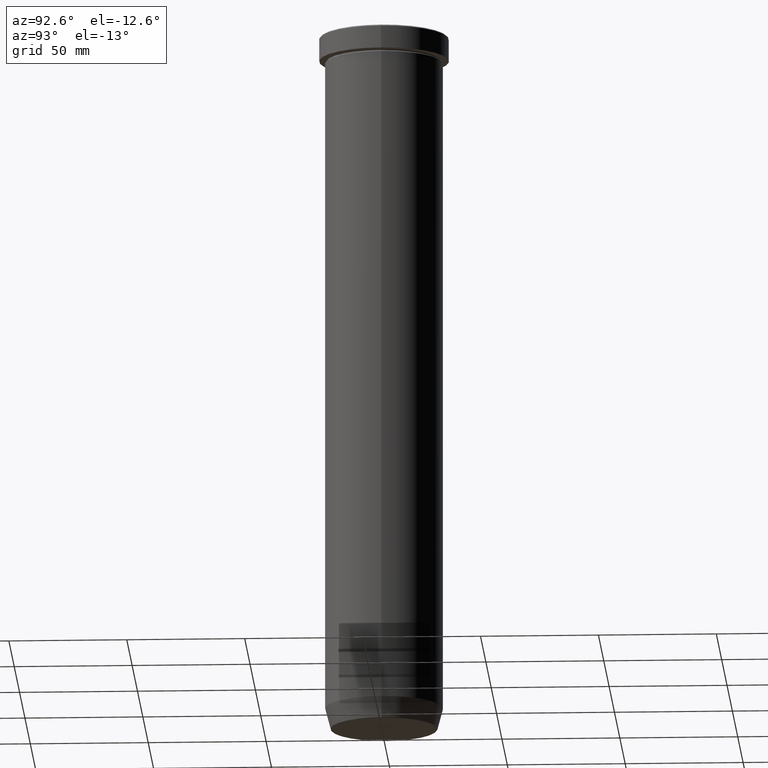
[diagram: clean part render]
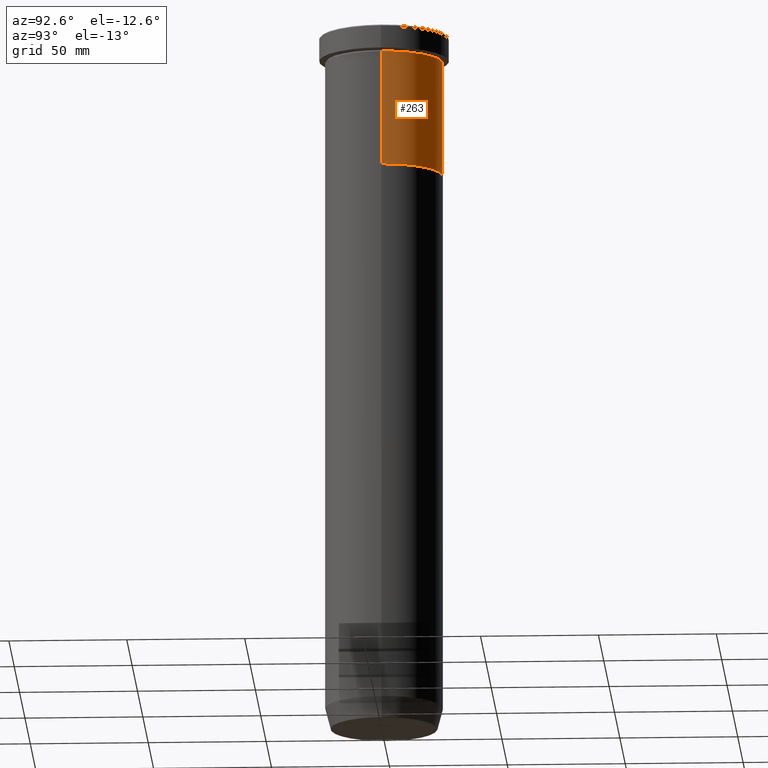
[diagram: same view with one face highlighted and labeled with its STEP entity id]
A machine part, auxiliary view. The second image highlights one B-rep face of the part: STEP entity #263.
In plain terms, the highlighted cylindrical surface (partial cylindrical patch) has radius 25 mm, axis along (-0, -0, 1).
Its self-contained STEP definition (entity closure, byte-faithful):
#35 = LINE ( 'NONE', #227, #477 ) ;
#43 = CARTESIAN_POINT ( 'NONE',  ( 25.00000000000000000, 0.000000000000000000, 0.000000000000000000 ) ) ;
#50 = EDGE_CURVE ( 'NONE', #171, #387, #73, .T. ) ;
#71 = CARTESIAN_POINT ( 'NONE',  ( 0.000000000000000000, 0.000000000000000000, -60.00000000000000000 ) ) ;
#73 = CIRCLE ( 'NONE', #449, 25.00000000000000000 ) ;
#74 = DIRECTION ( 'NONE',  ( -0.000000000000000000, -0.000000000000000000, 1.000000000000000000 ) ) ;
#81 = EDGE_CURVE ( 'NONE', #573, #403, #588, .T. ) ;
#117 = CARTESIAN_POINT ( 'NONE',  ( 0.000000000000000000, 0.000000000000000000, -11.00000000000000000 ) ) ;
#123 = EDGE_CURVE ( 'NONE', #573, #171, #189, .T. ) ;
#171 = VERTEX_POINT ( 'NONE', #469 ) ;
#175 = AXIS2_PLACEMENT_3D ( 'NONE', #262, #196, #370 ) ;
#189 = LINE ( 'NONE', #43, #466 ) ;
#194 = DIRECTION ( 'NONE',  ( 1.000000000000000000, 0.000000000000000000, 0.000000000000000000 ) ) ;
#196 = DIRECTION ( 'NONE',  ( -0.000000000000000000, -0.000000000000000000, 1.000000000000000000 ) ) ;
#227 = CARTESIAN_POINT ( 'NONE',  ( -25.00000000000000000, 3.061616997868383043E-15, 0.000000000000000000 ) ) ;
#260 = ORIENTED_EDGE ( 'NONE', *, *, #316, .T. ) ;
#262 = CARTESIAN_POINT ( 'NONE',  ( 0.000000000000000000, 0.000000000000000000, 0.000000000000000000 ) ) ;
#263 = ADVANCED_FACE ( 'NONE', ( #483 ), #574, .T. ) ;
#268 = DIRECTION ( 'NONE',  ( -0.000000000000000000, -0.000000000000000000, 1.000000000000000000 ) ) ;
#283 = DIRECTION ( 'NONE',  ( -0.000000000000000000, -0.000000000000000000, 1.000000000000000000 ) ) ;
#298 = CARTESIAN_POINT ( 'NONE',  ( -25.00000000000000711, 3.061616997868383831E-15, -60.00000000000000000 ) ) ;
#309 = DIRECTION ( 'NONE',  ( 1.000000000000000000, 0.000000000000000000, 0.000000000000000000 ) ) ;
#316 = EDGE_CURVE ( 'NONE', #403, #387, #35, .T. ) ;
#351 = CARTESIAN_POINT ( 'NONE',  ( 25.00000000000000355, 0.000000000000000000, -60.00000000000000000 ) ) ;
#364 = AXIS2_PLACEMENT_3D ( 'NONE', #71, #268, #194 ) ;
#370 = DIRECTION ( 'NONE',  ( 1.000000000000000000, 0.000000000000000000, 0.000000000000000000 ) ) ;
#387 = VERTEX_POINT ( 'NONE', #399 ) ;
#399 = CARTESIAN_POINT ( 'NONE',  ( -25.00000000000000000, 3.061616997868383043E-15, -11.00000000000000000 ) ) ;
#403 = VERTEX_POINT ( 'NONE', #298 ) ;
#408 = DIRECTION ( 'NONE',  ( -0.000000000000000000, -0.000000000000000000, 1.000000000000000000 ) ) ;
#442 = ORIENTED_EDGE ( 'NONE', *, *, #123, .F. ) ;
#449 = AXIS2_PLACEMENT_3D ( 'NONE', #117, #74, #309 ) ;
#466 = VECTOR ( 'NONE', #283, 1000.000000000000000 ) ;
#469 = CARTESIAN_POINT ( 'NONE',  ( 25.00000000000000000, 0.000000000000000000, -11.00000000000000000 ) ) ;
#476 = ORIENTED_EDGE ( 'NONE', *, *, #50, .F. ) ;
#477 = VECTOR ( 'NONE', #408, 1000.000000000000000 ) ;
#479 = EDGE_LOOP ( 'NONE', ( #528, #260, #476, #442 ) ) ;
#483 = FACE_OUTER_BOUND ( 'NONE', #479, .T. ) ;
#528 = ORIENTED_EDGE ( 'NONE', *, *, #81, .T. ) ;
#573 = VERTEX_POINT ( 'NONE', #351 ) ;
#574 = CYLINDRICAL_SURFACE ( 'NONE', #175, 25.00000000000000000 ) ;
#588 = CIRCLE ( 'NONE', #364, 25.00000000000000355 ) ;